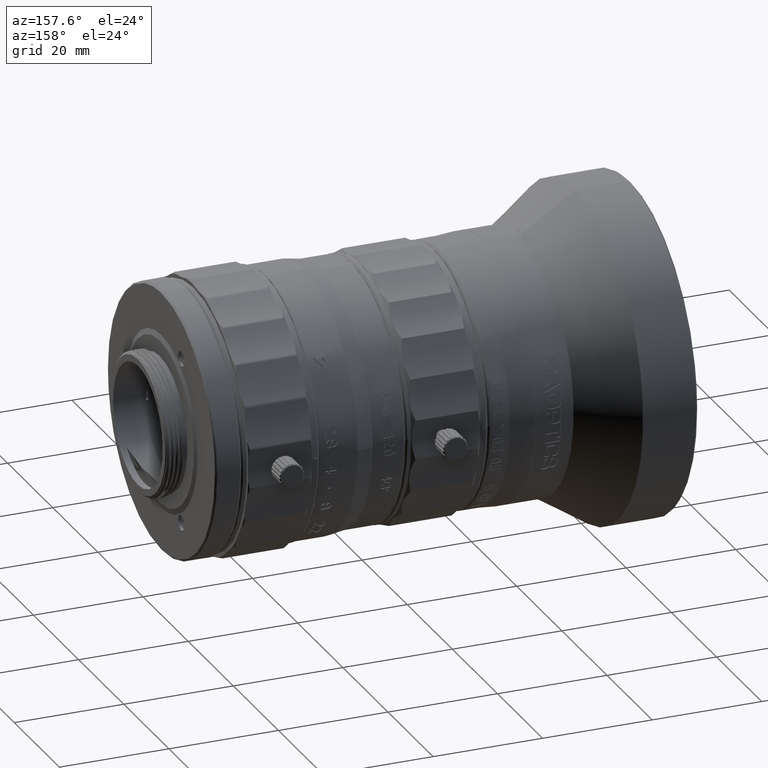
[diagram: clean part render]
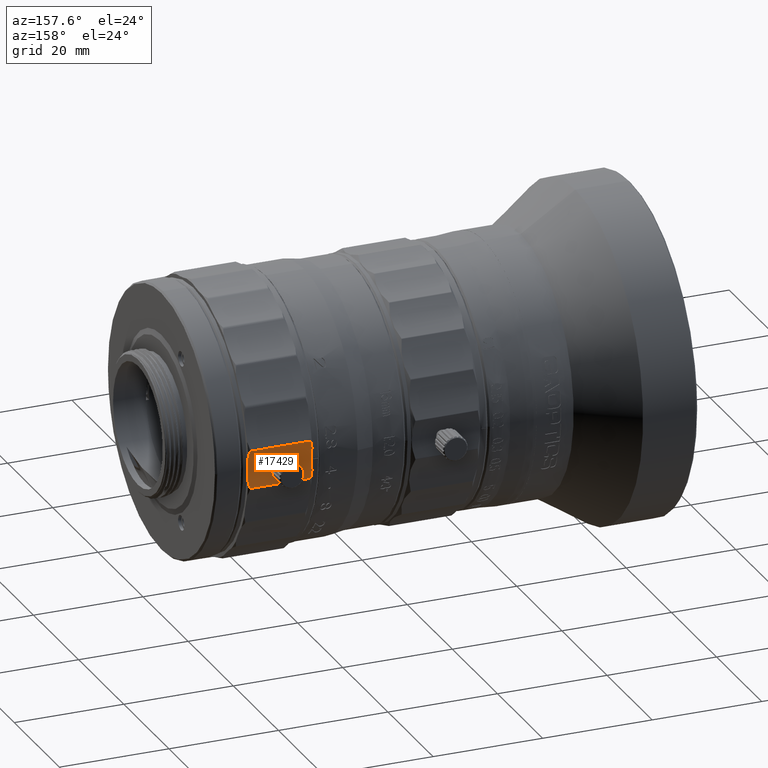
[diagram: same view with one face highlighted and labeled with its STEP entity id]
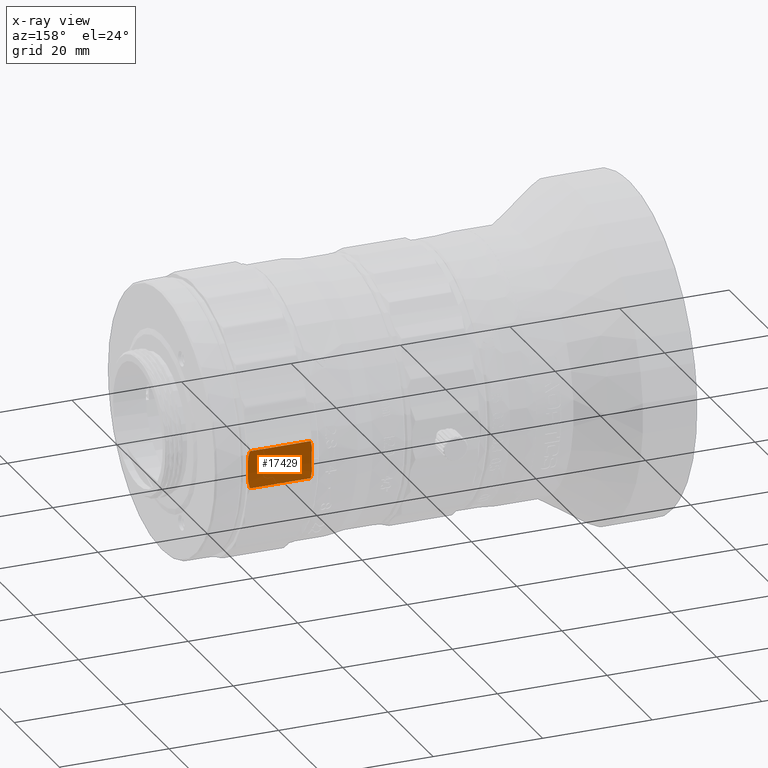
[diagram: x-ray of the same camera — body ghosted, the highlighted face saturated]
A machine part, auxiliary view. The second image highlights one B-rep face of the part: STEP entity #17429.
The next image is the same camera in x-ray: the body ghosted, the highlighted face saturated — about 0% of this face is hidden behind the body in this view.
In plain terms, the highlighted cylindrical surface (partial cylindrical patch) has radius 26 mm, axis along (-1, 0, 0).
Its self-contained STEP definition (entity closure, byte-faithful):
#1155 = EDGE_CURVE ( 'NONE', #65426, #41350, #26458, .T. ) ;
#1571 = CARTESIAN_POINT ( 'NONE',  ( 64.95569999999999311, 24.11923788646683420, -1.000000000000000888 ) ) ;
#2423 = CARTESIAN_POINT ( 'NONE',  ( 64.69144446580685326, 24.11923788646684130, -1.000000000000001110 ) ) ;
#2940 = CARTESIAN_POINT ( 'NONE',  ( 70.51027967038609745, 24.32849855462410105, 3.439435019237445434 ) ) ;
#4070 = EDGE_CURVE ( 'NONE', #75321, #44907, #11499, .T. ) ;
#5575 = CARTESIAN_POINT ( 'NONE',  ( 59.13069999999991211, 24.19660678642706486, 2.239245413755228675 ) ) ;
#5744 = CARTESIAN_POINT ( 'NONE',  ( 65.45954047251682084, 24.11463546587402007, 0.8737006079100213540 ) ) ;
#6172 = CARTESIAN_POINT ( 'NONE',  ( 65.82965582165006424, 24.10459092895376543, 0.5033600595805722833 ) ) ;
#6981 = CARTESIAN_POINT ( 'NONE',  ( 59.40112032959854105, 24.32849855461970989, -3.439435019158872286 ) ) ;
#7261 = FACE_BOUND ( 'NONE', #45789, .T. ) ;
#8495 = EDGE_CURVE ( 'NONE', #40370, #20860, #23186, .T. ) ;
#8529 = CARTESIAN_POINT ( 'NONE',  ( 64.45296388137087717, 24.11465290970172504, 0.8741968944685742926 ) ) ;
#9391 = CARTESIAN_POINT ( 'NONE',  ( 63.98196416330402769, 24.10104535432341777, 0.2626428014612568473 ) ) ;
#10400 = CARTESIAN_POINT ( 'NONE',  ( 59.29358135526164375, 24.27575847874855697, -3.044256469746140947 ) ) ;
#10509 = EDGE_CURVE ( 'NONE', #40370, #28365, #32009, .T. ) ;
#10728 = CARTESIAN_POINT ( 'NONE',  ( 70.78069999999999595, 50.10000000000000142, 0.000000000000000000 ) ) ;
#11412 = CARTESIAN_POINT ( 'NONE',  ( 65.21753885543679985, 24.11820069628744179, -0.9739757732657378098 ) ) ;
#11499 = B_SPLINE_CURVE_WITH_KNOTS ( 'NONE', 3,
 ( #45424, #59785, #11412, #11849, #51529, #79413, #32771, #53220, #79834, #85515, #85945, #6172, #45864, #78128, #5744, #46281, #18408, #44991 ),
 .UNSPECIFIED., .F., .F.,
 ( 4, 2, 2, 2, 2, 2, 2, 2, 4 ),
 ( 0.000000000000000000, 0.0003908431291701515019, 0.0007816862583403030038, 0.001172529387510454560, 0.001563372516680606008, 0.001954215645850757455, 0.002345058775020909553, 0.002735901904191061218, 0.003126745033361213316 ),
 .UNSPECIFIED. ) ;
#11849 = CARTESIAN_POINT ( 'NONE',  ( 65.45975953023068428, 24.11463081882039106, -0.8735630390009769819 ) ) ;
#13493 = CARTESIAN_POINT ( 'NONE',  ( 70.61781864469485015, 24.27575847876976667, -3.044256469929415232 ) ) ;
#13928 = B_SPLINE_CURVE_WITH_KNOTS ( 'NONE', 3,
 ( #15072, #68262, #68700, #8529, #14208, #75658, #82206, #9391, #41662, #62157, #28599, #21190, #47791, #61721, #2423, #1571 ),
 .UNSPECIFIED., .F., .F.,
 ( 4, 2, 2, 2, 2, 2, 2, 4 ),
 ( 0.003126745033361213316, 0.003517499447932244134, 0.003908253862503274952, 0.004299008277074305336, 0.004689762691645335720, 0.005080517106216366971, 0.005471271520787397355, 0.006252780349929459858 ),
 .UNSPECIFIED. ) ;
#14208 = CARTESIAN_POINT ( 'NONE',  ( 64.34134627092487335, 24.11213887786417587, 0.7997298108261976513 ) ) ;
#15072 = CARTESIAN_POINT ( 'NONE',  ( 64.95570000000050470, 24.11923788646704736, 1.000000000005476952 ) ) ;
#16368 = ORIENTED_EDGE ( 'NONE', *, *, #1155, .F. ) ;
#17429 = ADVANCED_FACE ( 'NONE', ( #33445, #7261 ), #27343, .F. ) ;
#18182 = EDGE_CURVE ( 'NONE', #65426, #20860, #60831, .T. ) ;
#18408 = CARTESIAN_POINT ( 'NONE',  ( 65.08623699476440549, 24.11923788646683420, 0.9999999999998889777 ) ) ;
#20780 = DIRECTION ( 'NONE',  ( 0.000000000000000000, 0.000000000000000000, 1.000000000000000000 ) ) ;
#20860 = VERTEX_POINT ( 'NONE', #31887 ) ;
#21190 = CARTESIAN_POINT ( 'NONE',  ( 64.08175792124886527, 24.10459151020722146, -0.5034365269100979923 ) ) ;
#23186 = CIRCLE ( 'NONE', #80254, 26.00000000000000355 ) ;
#24229 = DIRECTION ( 'NONE',  ( 0.000000000000000000, 0.000000000000000000, 1.000000000000000000 ) ) ;
#24307 = ORIENTED_EDGE ( 'NONE', *, *, #57834, .T. ) ;
#25125 = CARTESIAN_POINT ( 'NONE',  ( 70.78070000000008122, 24.19660678642705776, -2.239245413755164726 ) ) ;
#26254 = ORIENTED_EDGE ( 'NONE', *, *, #71100, .T. ) ;
#26458 = LINE ( 'NONE', #73542, #27821 ) ;
#27343 = CYLINDRICAL_SURFACE ( 'NONE', #80769, 26.00000000000000355 ) ;
#27406 = CARTESIAN_POINT ( 'NONE',  ( 70.78069999999961226, 24.19660678642748763, 2.239245413760135417 ) ) ;
#27821 = VECTOR ( 'NONE', #53879, 1000.000000000000000 ) ;
#28316 = CARTESIAN_POINT ( 'NONE',  ( 70.70850173812081607, 24.23162510506314504, -2.644334231504390953 ) ) ;
#28365 = VERTEX_POINT ( 'NONE', #55662 ) ;
#28599 = CARTESIAN_POINT ( 'NONE',  ( 63.98145071210898038, 24.10102599199086271, -0.2608858345770974640 ) ) ;
#31169 = EDGE_CURVE ( 'NONE', #85052, #28365, #56608, .T. ) ;
#31887 = CARTESIAN_POINT ( 'NONE',  ( 59.13070000000036686, 24.19660678642748763, -2.239245413760127867 ) ) ;
#32009 = B_SPLINE_CURVE_WITH_KNOTS ( 'NONE', 3,
 ( #33792, #72627, #85687, #78739 ),
 .UNSPECIFIED., .F., .F.,
 ( 4, 4 ),
 ( 7.554059731517507836E-16, 0.001237326829133786766 ),
 .UNSPECIFIED. ) ;
#32346 = CARTESIAN_POINT ( 'NONE',  ( 59.13070000000001158, 50.10000000000000142, 0.000000000000000000 ) ) ;
#32574 = ORIENTED_EDGE ( 'NONE', *, *, #18182, .T. ) ;
#32771 = CARTESIAN_POINT ( 'NONE',  ( 65.82967493925788460, 24.10458984909957536, -0.5031276801272929200 ) ) ;
#33445 = FACE_OUTER_BOUND ( 'NONE', #42642, .T. ) ;
#33688 = B_SPLINE_CURVE_WITH_KNOTS ( 'NONE', 3,
 ( #27406, #61389, #40902, #67504 ),
 .UNSPECIFIED., .F., .F.,
 ( 4, 4 ),
 ( 3.919971588973034234E-15, 0.001237326829213603345 ),
 .UNSPECIFIED. ) ;
#33792 = CARTESIAN_POINT ( 'NONE',  ( 59.13069999999991211, 24.19660678642706486, 2.239245413755228675 ) ) ;
#34836 = CARTESIAN_POINT ( 'NONE',  ( 70.78070000000008122, 24.19660678642705776, -2.239245413755164726 ) ) ;
#36822 = VECTOR ( 'NONE', #62745, 1000.000000000000000 ) ;
#38076 = EDGE_CURVE ( 'NONE', #44907, #75321, #13928, .T. ) ;
#38807 = ORIENTED_EDGE ( 'NONE', *, *, #4070, .T. ) ;
#39963 = B_SPLINE_CURVE_WITH_KNOTS ( 'NONE', 3,
 ( #34836, #28316, #13493, #40101 ),
 .UNSPECIFIED., .F., .F.,
 ( 4, 4 ),
 ( 7.145713235959486309E-16, 0.001237326829213986068 ),
 .UNSPECIFIED. ) ;
#40101 = CARTESIAN_POINT ( 'NONE',  ( 70.51027967038609745, 24.32849855462409394, -3.439435019237493840 ) ) ;
#40370 = VERTEX_POINT ( 'NONE', #5575 ) ;
#40653 = CARTESIAN_POINT ( 'NONE',  ( 64.95570000000050470, 24.11923788646704736, 1.000000000005476952 ) ) ;
#40837 = VERTEX_POINT ( 'NONE', #25125 ) ;
#40902 = CARTESIAN_POINT ( 'NONE',  ( 70.61781864469453751, 24.27575847876992654, 3.044256469930623599 ) ) ;
#41350 = VERTEX_POINT ( 'NONE', #61058 ) ;
#41433 = CIRCLE ( 'NONE', #42854, 26.00000000000000355 ) ;
#41557 = CARTESIAN_POINT ( 'NONE',  ( 64.95569999999999311, 24.11923788646683420, -1.000000000000000888 ) ) ;
#41662 = CARTESIAN_POINT ( 'NONE',  ( 63.95581008456516514, 24.10000423402027536, 0.1327320326107808424 ) ) ;
#42642 = EDGE_LOOP ( 'NONE', ( #44046, #42731, #72073, #54745, #26254, #24307, #16368, #32574 ) ) ;
#42731 = ORIENTED_EDGE ( 'NONE', *, *, #10509, .T. ) ;
#42854 = AXIS2_PLACEMENT_3D ( 'NONE', #10728, #49966, #24229 ) ;
#42974 = ORIENTED_EDGE ( 'NONE', *, *, #38076, .T. ) ;
#44046 = ORIENTED_EDGE ( 'NONE', *, *, #8495, .F. ) ;
#44907 = VERTEX_POINT ( 'NONE', #40653 ) ;
#44991 = CARTESIAN_POINT ( 'NONE',  ( 64.95570000000050470, 24.11923788646704736, 1.000000000005476952 ) ) ;
#45424 = CARTESIAN_POINT ( 'NONE',  ( 64.95569999999999311, 24.11923788646683420, -1.000000000000000888 ) ) ;
#45789 = EDGE_LOOP ( 'NONE', ( #38807, #42974 ) ) ;
#45864 = CARTESIAN_POINT ( 'NONE',  ( 65.75630511630734532, 24.10707281377807831, 0.6135650943578196959 ) ) ;
#46281 = CARTESIAN_POINT ( 'NONE',  ( 65.21714875839417402, 24.11820502346050787, 0.9740906121826863329 ) ) ;
#47791 = CARTESIAN_POINT ( 'NONE',  ( 64.15586042955273172, 24.10709245056136396, -0.6142428968079332030 ) ) ;
#49966 = DIRECTION ( 'NONE',  ( 1.000000000000000000, -0.000000000000000000, -0.000000000000000000 ) ) ;
#51371 = CARTESIAN_POINT ( 'NONE',  ( 64.95570000000000732, 24.32849855462458777, 3.439435019158387785 ) ) ;
#51529 = CARTESIAN_POINT ( 'NONE',  ( 65.57069248658056893, 24.11212372068752074, -0.7992543282302485563 ) ) ;
#53220 = CARTESIAN_POINT ( 'NONE',  ( 65.92940298558362144, 24.10104590135940938, -0.2624350449666163487 ) ) ;
#53879 = DIRECTION ( 'NONE',  ( 1.000000000000000000, -0.000000000000000000, -0.000000000000000000 ) ) ;
#53897 = CARTESIAN_POINT ( 'NONE',  ( 70.78069999999999595, 50.10000000000000142, 0.000000000000000000 ) ) ;
#54745 = ORIENTED_EDGE ( 'NONE', *, *, #84966, .F. ) ;
#55662 = CARTESIAN_POINT ( 'NONE',  ( 59.40112032959854815, 24.32849855461970989, 3.439435019158858964 ) ) ;
#56608 = LINE ( 'NONE', #51371, #36822 ) ;
#57834 = EDGE_CURVE ( 'NONE', #40837, #41350, #39963, .T. ) ;
#58500 = DIRECTION ( 'NONE',  ( 0.000000000000000000, 0.000000000000000000, 1.000000000000000000 ) ) ;
#58935 = DIRECTION ( 'NONE',  ( 1.000000000000000000, -0.000000000000000000, -0.000000000000000000 ) ) ;
#59785 = CARTESIAN_POINT ( 'NONE',  ( 65.08785776461279227, 24.11923788646683775, -1.000000000000001110 ) ) ;
#60831 = B_SPLINE_CURVE_WITH_KNOTS ( 'NONE', 3,
 ( #76663, #10400, #64030, #77092 ),
 .UNSPECIFIED., .F., .F.,
 ( 4, 4 ),
 ( 9.148096775543075295E-17, 0.001237326829129747896 ),
 .UNSPECIFIED. ) ;
#61058 = CARTESIAN_POINT ( 'NONE',  ( 70.51027967038609745, 24.32849855462409394, -3.439435019237493840 ) ) ;
#61389 = CARTESIAN_POINT ( 'NONE',  ( 70.70850173812095818, 24.23162510506308109, 2.644334231503544519 ) ) ;
#61721 = CARTESIAN_POINT ( 'NONE',  ( 64.43255689347050463, 24.11462571270617161, -0.8913315819714201504 ) ) ;
#62157 = CARTESIAN_POINT ( 'NONE',  ( 63.95559060762852255, 24.09999579260255587, -0.1310680691841439871 ) ) ;
#62745 = DIRECTION ( 'NONE',  ( -1.000000000000000000, 0.000000000000000000, 0.000000000000000000 ) ) ;
#64030 = CARTESIAN_POINT ( 'NONE',  ( 59.20289826187431004, 24.23162510506078959, -2.644334231477083463 ) ) ;
#65426 = VERTEX_POINT ( 'NONE', #6981 ) ;
#67504 = CARTESIAN_POINT ( 'NONE',  ( 70.51027967038609745, 24.32849855462410105, 3.439435019237445434 ) ) ;
#68262 = CARTESIAN_POINT ( 'NONE',  ( 64.82519263486690875, 24.11923788646683775, 1.000000000000113465 ) ) ;
#68700 = CARTESIAN_POINT ( 'NONE',  ( 64.69365736670241063, 24.11819509464433153, 0.9738056652162132565 ) ) ;
#71100 = EDGE_CURVE ( 'NONE', #78371, #40837, #41433, .T. ) ;
#72073 = ORIENTED_EDGE ( 'NONE', *, *, #31169, .F. ) ;
#72627 = CARTESIAN_POINT ( 'NONE',  ( 59.20289826187448057, 24.23162510506087131, 2.644334231478049801 ) ) ;
#73152 = CARTESIAN_POINT ( 'NONE',  ( 70.78069999999961226, 24.19660678642748763, 2.239245413760135417 ) ) ;
#73542 = CARTESIAN_POINT ( 'NONE',  ( 64.95570000000000732, 24.32849855462458777, -3.439435019158401552 ) ) ;
#75321 = VERTEX_POINT ( 'NONE', #41557 ) ;
#75658 = CARTESIAN_POINT ( 'NONE',  ( 64.15683511135260630, 24.10712250809264745, 0.6154779967139409891 ) ) ;
#76663 = CARTESIAN_POINT ( 'NONE',  ( 59.40112032959854105, 24.32849855461970989, -3.439435019158872286 ) ) ;
#77092 = CARTESIAN_POINT ( 'NONE',  ( 59.13070000000036686, 24.19660678642748763, -2.239245413760127867 ) ) ;
#78128 = CARTESIAN_POINT ( 'NONE',  ( 65.56963647890501079, 24.11215258710127074, 0.8003203590697738345 ) ) ;
#78371 = VERTEX_POINT ( 'NONE', #73152 ) ;
#78739 = CARTESIAN_POINT ( 'NONE',  ( 59.40112032959854815, 24.32849855461970989, 3.439435019158858964 ) ) ;
#79413 = CARTESIAN_POINT ( 'NONE',  ( 65.75517608946252324, 24.10710366719545661, -0.6147041744799603968 ) ) ;
#79834 = CARTESIAN_POINT ( 'NONE',  ( 65.95565354535619917, 24.10000178671695181, -0.1308161941684285179 ) ) ;
#80254 = AXIS2_PLACEMENT_3D ( 'NONE', #32346, #58935, #58500 ) ;
#80514 = DIRECTION ( 'NONE',  ( -1.000000000000000000, 0.000000000000000000, 0.000000000000000000 ) ) ;
#80769 = AXIS2_PLACEMENT_3D ( 'NONE', #53897, #80514, #20780 ) ;
#82206 = CARTESIAN_POINT ( 'NONE',  ( 64.08240308627553361, 24.10461331913290550, 0.5044751939439205968 ) ) ;
#84966 = EDGE_CURVE ( 'NONE', #78371, #85052, #33688, .T. ) ;
#85052 = VERTEX_POINT ( 'NONE', #2940 ) ;
#85515 = CARTESIAN_POINT ( 'NONE',  ( 65.95574632819446492, 24.09999821814647447, 0.1301049998726216961 ) ) ;
#85687 = CARTESIAN_POINT ( 'NONE',  ( 59.29358135526135243, 24.27575847874841131, 3.044256469745051152 ) ) ;
#85945 = CARTESIAN_POINT ( 'NONE',  ( 65.92983919793212522, 24.10102999790598588, 0.2611952350813692703 ) ) ;